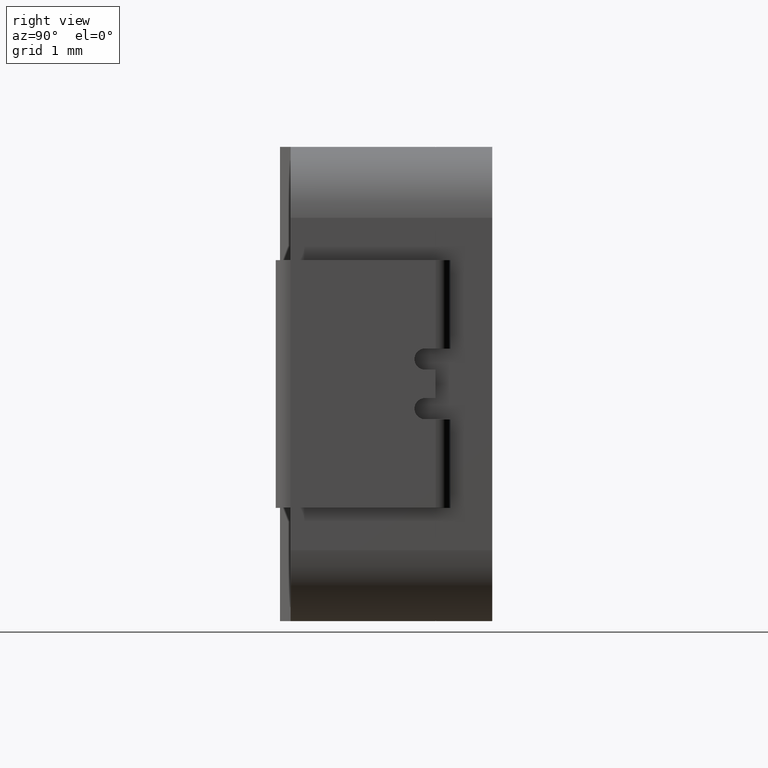
[diagram: clean part render]
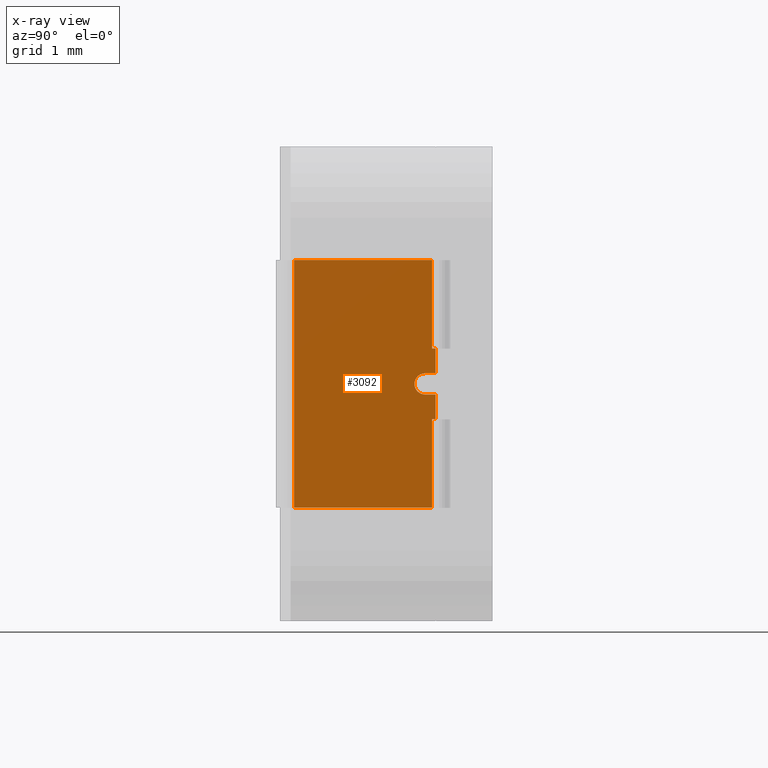
[diagram: x-ray — body ghosted, one internal face saturated and labeled with its STEP entity id]
A machine part, right view, then the same camera in x-ray: the body is ghosted and one INTERNAL B-rep face — a face not visible from any outside direction — is saturated and labeled: STEP entity #3092.
In plain terms, the highlighted planar face has unit normal (-1, 0, 0).
Its self-contained STEP definition (entity closure, byte-faithful):
#59 = LINE ( 'NONE', #166, #5457 ) ;
#85 = ORIENTED_EDGE ( 'NONE', *, *, #3826, .T. ) ;
#166 = CARTESIAN_POINT ( 'NONE',  ( -3.365000000000001990, 0.1999999999999997613, 1.750000000000000000 ) ) ;
#376 = DIRECTION ( 'NONE',  ( 0.0000000000000000000, -1.000000000000000000, 0.0000000000000000000 ) ) ;
#418 = DIRECTION ( 'NONE',  ( 0.0000000000000000000, -0.0000000000000000000, -1.000000000000000000 ) ) ;
#428 = VERTEX_POINT ( 'NONE', #4375 ) ;
#623 = EDGE_CURVE ( 'NONE', #428, #2549, #3800, .T. ) ;
#697 = CARTESIAN_POINT ( 'NONE',  ( -3.365000000000001545, 2.200000000000000178, -0.5000000000000000000 ) ) ;
#768 = EDGE_LOOP ( 'NONE', ( #1178, #3010, #85, #5905, #3165, #1850, #5378, #3726, #5425, #2374, #1964, #3149 ) ) ;
#802 = DIRECTION ( 'NONE',  ( 1.755792991879359229E-16, 1.000000000000000000, 0.0000000000000000000 ) ) ;
#828 = DIRECTION ( 'NONE',  ( -1.000000000000000000, 1.755792991879359229E-16, 0.0000000000000000000 ) ) ;
#842 = CARTESIAN_POINT ( 'NONE',  ( -3.365000000000001545, 2.200000000000000178, 0.4999999999999995559 ) ) ;
#854 = EDGE_CURVE ( 'NONE', #2549, #1528, #1908, .T. ) ;
#984 = CARTESIAN_POINT ( 'NONE',  ( -3.365000000000001990, 0.1999999999999997613, -1.750000000000000000 ) ) ;
#1178 = ORIENTED_EDGE ( 'NONE', *, *, #2566, .T. ) ;
#1206 = EDGE_CURVE ( 'NONE', #5286, #5310, #1962, .T. ) ;
#1278 = CARTESIAN_POINT ( 'NONE',  ( -3.365000000000001545, 2.149999999999999911, 1.750000000000000000 ) ) ;
#1318 = VECTOR ( 'NONE', #6174, 1000.000000000000000 ) ;
#1383 = EDGE_CURVE ( 'NONE', #3069, #3626, #2408, .T. ) ;
#1391 = DIRECTION ( 'NONE',  ( -1.755792991879359229E-16, -1.000000000000000000, -1.807003620809174632E-16 ) ) ;
#1392 = CARTESIAN_POINT ( 'NONE',  ( -3.365000000000001545, 2.050000000000000266, -0.1500000000000007716 ) ) ;
#1403 = CARTESIAN_POINT ( 'NONE',  ( -3.365000000000001545, 2.050000000000000266, -7.589415207398531038E-16 ) ) ;
#1467 = DIRECTION ( 'NONE',  ( 0.0000000000000000000, 0.0000000000000000000, 1.000000000000000000 ) ) ;
#1474 = CARTESIAN_POINT ( 'NONE',  ( -3.365000000000001545, 3.000000000000000888, -0.5000000000000000000 ) ) ;
#1528 = VERTEX_POINT ( 'NONE', #984 ) ;
#1625 = CARTESIAN_POINT ( 'NONE',  ( -3.365000000000001545, 2.200000000000000178, 1.750000000000000000 ) ) ;
#1809 = CARTESIAN_POINT ( 'NONE',  ( -3.365000000000001545, 2.149999999999999911, -1.750000000000000000 ) ) ;
#1834 = VECTOR ( 'NONE', #4270, 1000.000000000000000 ) ;
#1850 = ORIENTED_EDGE ( 'NONE', *, *, #4316, .T. ) ;
#1881 = VECTOR ( 'NONE', #5541, 1000.000000000000000 ) ;
#1908 = LINE ( 'NONE', #2455, #2254 ) ;
#1962 = LINE ( 'NONE', #6235, #2939 ) ;
#1964 = ORIENTED_EDGE ( 'NONE', *, *, #1383, .T. ) ;
#1985 = CARTESIAN_POINT ( 'NONE',  ( -3.365000000000001545, 2.200000000000000178, 0.1499999999999992173 ) ) ;
#2254 = VECTOR ( 'NONE', #6051, 1000.000000000000000 ) ;
#2285 = VECTOR ( 'NONE', #4195, 1000.000000000000000 ) ;
#2374 = ORIENTED_EDGE ( 'NONE', *, *, #2886, .F. ) ;
#2408 = LINE ( 'NONE', #1625, #1834 ) ;
#2419 = CARTESIAN_POINT ( 'NONE',  ( -3.365000000000001545, 2.410000000000000142, 1.750000000000000000 ) ) ;
#2450 = CARTESIAN_POINT ( 'NONE',  ( -3.365000000000001545, 2.050000000000000266, 0.1499999999999991895 ) ) ;
#2455 = CARTESIAN_POINT ( 'NONE',  ( -3.365000000000001545, 2.410000000000000142, -1.750000000000000000 ) ) ;
#2511 = CIRCLE ( 'NONE', #3323, 0.1499999999999999667 ) ;
#2549 = VERTEX_POINT ( 'NONE', #1809 ) ;
#2564 = VERTEX_POINT ( 'NONE', #842 ) ;
#2566 = EDGE_CURVE ( 'NONE', #3381, #5286, #2511, .T. ) ;
#2886 = EDGE_CURVE ( 'NONE', #3069, #428, #4111, .T. ) ;
#2939 = VECTOR ( 'NONE', #5761, 1000.000000000000000 ) ;
#2960 = VERTEX_POINT ( 'NONE', #5795 ) ;
#3006 = CARTESIAN_POINT ( 'NONE',  ( -3.365000000000001545, 2.149999999999999911, 0.5000000000000000000 ) ) ;
#3010 = ORIENTED_EDGE ( 'NONE', *, *, #1206, .T. ) ;
#3069 = VERTEX_POINT ( 'NONE', #697 ) ;
#3092 = ADVANCED_FACE ( 'NONE', ( #6198 ), #3395, .F. ) ;
#3117 = LINE ( 'NONE', #3430, #1881 ) ;
#3149 = ORIENTED_EDGE ( 'NONE', *, *, #5212, .T. ) ;
#3165 = ORIENTED_EDGE ( 'NONE', *, *, #5519, .F. ) ;
#3166 = VERTEX_POINT ( 'NONE', #3006 ) ;
#3323 = AXIS2_PLACEMENT_3D ( 'NONE', #1403, #6015, #376 ) ;
#3381 = VERTEX_POINT ( 'NONE', #1392 ) ;
#3395 = PLANE ( 'NONE',  #6005 ) ;
#3430 = CARTESIAN_POINT ( 'NONE',  ( -3.365000000000001545, 2.410000000000000142, 1.750000000000000000 ) ) ;
#3593 = CARTESIAN_POINT ( 'NONE',  ( -3.365000000000001545, 2.149999999999999911, 1.750000000000000000 ) ) ;
#3626 = VERTEX_POINT ( 'NONE', #5125 ) ;
#3726 = ORIENTED_EDGE ( 'NONE', *, *, #854, .F. ) ;
#3800 = LINE ( 'NONE', #3593, #6565 ) ;
#3826 = EDGE_CURVE ( 'NONE', #5310, #2564, #6641, .T. ) ;
#3954 = CARTESIAN_POINT ( 'NONE',  ( -3.365000000000001545, 2.410000000000000586, -0.1500000000000008271 ) ) ;
#4070 = EDGE_CURVE ( 'NONE', #2960, #1528, #59, .T. ) ;
#4111 = LINE ( 'NONE', #1474, #4909 ) ;
#4171 = CARTESIAN_POINT ( 'NONE',  ( -3.365000000000001545, 2.149999999999999911, 1.750000000000000000 ) ) ;
#4195 = DIRECTION ( 'NONE',  ( 0.0000000000000000000, -0.0000000000000000000, -1.000000000000000000 ) ) ;
#4270 = DIRECTION ( 'NONE',  ( 0.0000000000000000000, 0.0000000000000000000, 1.000000000000000000 ) ) ;
#4316 = EDGE_CURVE ( 'NONE', #6486, #2960, #3117, .T. ) ;
#4375 = CARTESIAN_POINT ( 'NONE',  ( -3.365000000000001545, 2.149999999999999911, -0.5000000000000000000 ) ) ;
#4648 = VECTOR ( 'NONE', #1391, 1000.000000000000000 ) ;
#4810 = LINE ( 'NONE', #3954, #4648 ) ;
#4821 = EDGE_CURVE ( 'NONE', #2564, #3166, #5802, .T. ) ;
#4909 = VECTOR ( 'NONE', #5129, 1000.000000000000000 ) ;
#5125 = CARTESIAN_POINT ( 'NONE',  ( -3.365000000000001545, 2.200000000000000178, -0.1500000000000006051 ) ) ;
#5129 = DIRECTION ( 'NONE',  ( -9.825582188149883933E-17, -1.000000000000000000, 0.0000000000000000000 ) ) ;
#5212 = EDGE_CURVE ( 'NONE', #3626, #3381, #4810, .T. ) ;
#5286 = VERTEX_POINT ( 'NONE', #2450 ) ;
#5310 = VERTEX_POINT ( 'NONE', #1985 ) ;
#5378 = ORIENTED_EDGE ( 'NONE', *, *, #4070, .T. ) ;
#5425 = ORIENTED_EDGE ( 'NONE', *, *, #623, .F. ) ;
#5457 = VECTOR ( 'NONE', #6053, 1000.000000000000000 ) ;
#5514 = LINE ( 'NONE', #4171, #2285 ) ;
#5519 = EDGE_CURVE ( 'NONE', #6486, #3166, #5514, .T. ) ;
#5541 = DIRECTION ( 'NONE',  ( -1.755792991879359229E-16, -1.000000000000000000, 0.0000000000000000000 ) ) ;
#5761 = DIRECTION ( 'NONE',  ( 1.755792991879359229E-16, 1.000000000000000000, 1.807003620809174632E-16 ) ) ;
#5795 = CARTESIAN_POINT ( 'NONE',  ( -3.365000000000001990, 0.1999999999999997613, 1.750000000000000000 ) ) ;
#5802 = LINE ( 'NONE', #6747, #1318 ) ;
#5905 = ORIENTED_EDGE ( 'NONE', *, *, #4821, .T. ) ;
#6005 = AXIS2_PLACEMENT_3D ( 'NONE', #2419, #828, #802 ) ;
#6015 = DIRECTION ( 'NONE',  ( -1.000000000000000000, 1.755792991879359229E-16, 0.0000000000000000000 ) ) ;
#6051 = DIRECTION ( 'NONE',  ( -1.755792991879359229E-16, -1.000000000000000000, 0.0000000000000000000 ) ) ;
#6053 = DIRECTION ( 'NONE',  ( 0.0000000000000000000, -0.0000000000000000000, -1.000000000000000000 ) ) ;
#6122 = CARTESIAN_POINT ( 'NONE',  ( -3.365000000000001545, 2.200000000000000178, 1.750000000000000000 ) ) ;
#6174 = DIRECTION ( 'NONE',  ( -9.825582188149883933E-17, -1.000000000000000000, 0.0000000000000000000 ) ) ;
#6198 = FACE_OUTER_BOUND ( 'NONE', #768, .T. ) ;
#6235 = CARTESIAN_POINT ( 'NONE',  ( -3.365000000000001545, 2.410000000000000586, 0.1499999999999993006 ) ) ;
#6465 = VECTOR ( 'NONE', #1467, 1000.000000000000000 ) ;
#6486 = VERTEX_POINT ( 'NONE', #1278 ) ;
#6565 = VECTOR ( 'NONE', #418, 1000.000000000000000 ) ;
#6641 = LINE ( 'NONE', #6122, #6465 ) ;
#6747 = CARTESIAN_POINT ( 'NONE',  ( -3.365000000000001545, 3.000000000000000888, 0.5000000000000000000 ) ) ;